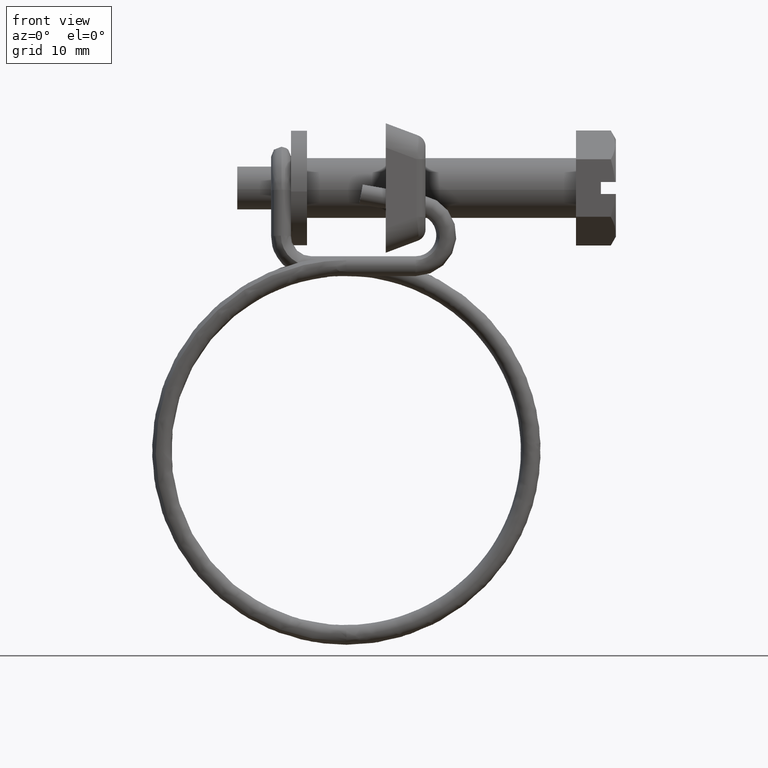
[diagram: clean part render]
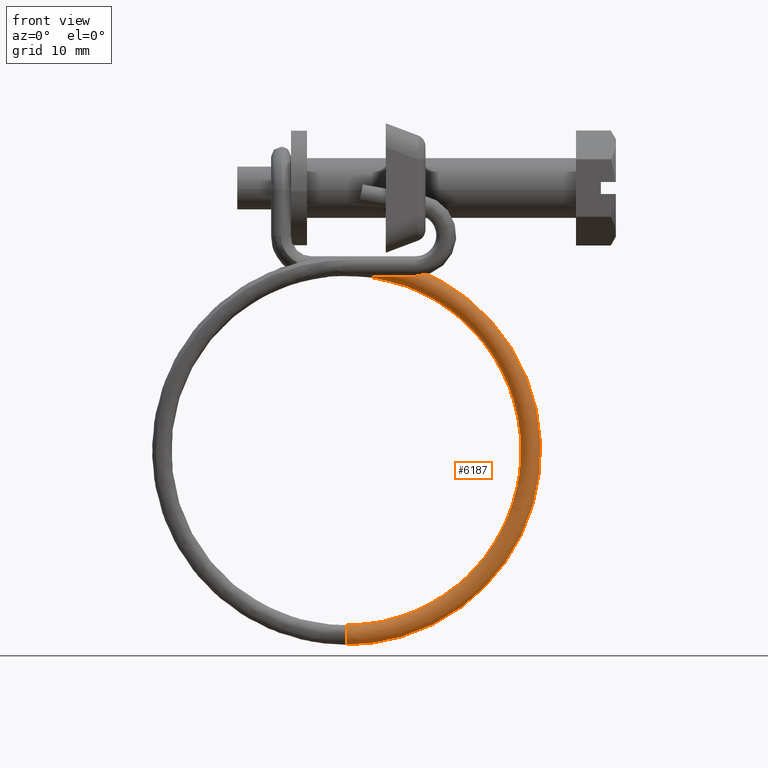
[diagram: same view with one face highlighted and labeled with its STEP entity id]
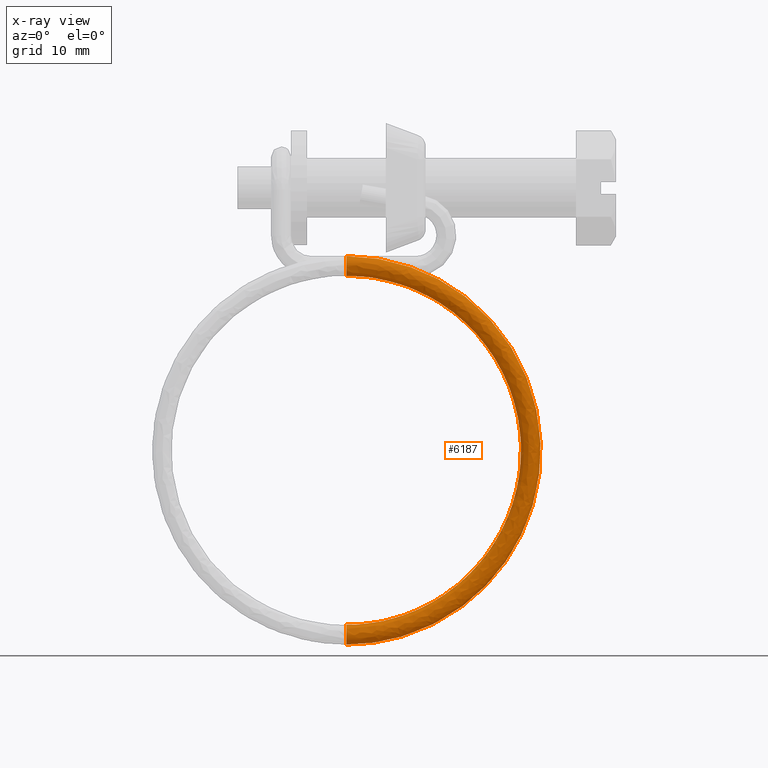
[diagram: x-ray of the same camera — body ghosted, the highlighted face saturated]
A machine part, front view. The second image highlights one B-rep face of the part: STEP entity #6187.
The next image is the same camera in x-ray: the body ghosted, the highlighted face saturated — about 0% of this face is hidden behind the body in this view.
In plain terms, the highlighted face is a freeform B-spline surface patch.
Its self-contained STEP definition (entity closure, byte-faithful):
#4745=CARTESIAN_POINT('',(-23.049997063512699,-4.979169497644462,-7.116017682653981));
#4746=VERTEX_POINT('',#4745);
#4747=CARTESIAN_POINT('',(-23.049997272682479,-5.071626583387065,-8.486079220278896));
#4748=VERTEX_POINT('',#4747);
#4749=CARTESIAN_POINT('',(-23.049997063512702,-4.979169497644463,-7.116017682653981));
#4750=CARTESIAN_POINT('',(-23.049997108836671,-5.300002000000000,-7.412889109673032));
#4751=CARTESIAN_POINT('',(-23.049997175571320,-5.300002000000000,-7.850001000000341));
#4752=CARTESIAN_POINT('',(-23.049997230386083,-5.300002000000001,-8.209037686578441));
#4753=CARTESIAN_POINT('',(-23.049997272682479,-5.071626583387065,-8.486079220278896));
#4761=(BOUNDED_CURVE()B_SPLINE_CURVE(2,(#4749,#4750,#4751,#4752,#4753),.UNSPECIFIED.,.F.,.U.)B_SPLINE_CURVE_WITH_KNOTS((3,2,3),(0.119149158085703,0.250000000000000,0.360504625859860),.UNSPECIFIED.)CURVE()GEOMETRIC_REPRESENTATION_ITEM()RATIONAL_B_SPLINE_CURVE((0.853874236145370,0.846698702909085,1.0,0.870535777752518,0.855522719038601))REPRESENTATION_ITEM(''));
#4762=EDGE_CURVE('',#4746,#4748,#4761,.T.);
#4837=CARTESIAN_POINT('',(-23.049997022899440,-4.300002000000000,-6.850001000000352));
#4838=VERTEX_POINT('',#4837);
#4839=CARTESIAN_POINT('',(-23.049997022899440,-4.300002000000000,-6.850001000000352));
#4840=CARTESIAN_POINT('',(-23.049997022899493,-4.691682086610713,-6.850001000000352));
#4841=CARTESIAN_POINT('',(-23.049997063512702,-4.979169497644463,-7.116017682653981));
#4849=(BOUNDED_CURVE()B_SPLINE_CURVE(2,(#4839,#4840,#4841),.UNSPECIFIED.,.F.,.U.)B_SPLINE_CURVE_WITH_KNOTS((3,3),(0.0,0.119149158085703),.UNSPECIFIED.)CURVE()GEOMETRIC_REPRESENTATION_ITEM()RATIONAL_B_SPLINE_CURVE((1.0,0.860408078277463,0.853874236145370))REPRESENTATION_ITEM(''));
#4850=EDGE_CURVE('',#4838,#4746,#4849,.T.);
#4852=CARTESIAN_POINT('',(-23.049997022887950,-4.287435959715079,-6.850079955801473));
#4853=VERTEX_POINT('',#4852);
#4854=CARTESIAN_POINT('',(-23.049997022887950,-4.287435959715079,-6.850079955801474));
#4855=CARTESIAN_POINT('',(-23.049997022899447,-4.293718731606495,-6.850001000000352));
#4856=CARTESIAN_POINT('',(-23.049997022899440,-4.300002000000000,-6.850001000000352));
#4864=(BOUNDED_CURVE()B_SPLINE_CURVE(2,(#4854,#4855,#4856),.UNSPECIFIED.,.F.,.U.)B_SPLINE_CURVE_WITH_KNOTS((3,3),(0.997784295780472,1.0),.UNSPECIFIED.)CURVE()GEOMETRIC_REPRESENTATION_ITEM()RATIONAL_B_SPLINE_CURVE((0.994854295318895,0.997404141036816,1.0))REPRESENTATION_ITEM(''));
#4865=EDGE_CURVE('',#4853,#4838,#4864,.T.);
#4867=CARTESIAN_POINT('',(-23.049997186218310,-3.302436326161036,-7.919734251596680));
#4868=VERTEX_POINT('',#4867);
#4884=CARTESIAN_POINT('',(-23.049997328242959,-4.300002000000000,-8.850001000000329));
#4885=VERTEX_POINT('',#4884);
#4886=CARTESIAN_POINT('',(-23.049997328242959,-4.300002000000000,-8.850001000000329));
#4887=CARTESIAN_POINT('',(-23.049997328242842,-3.367465152772754,-8.850001000000329));
#4888=CARTESIAN_POINT('',(-23.049997186218313,-3.302436326161036,-7.919734251596680));
#4896=(BOUNDED_CURVE()B_SPLINE_CURVE(2,(#4886,#4887,#4888),.UNSPECIFIED.,.F.,.U.)B_SPLINE_CURVE_WITH_KNOTS((3,3),(0.500000000000000,0.737833686527891),.UNSPECIFIED.)CURVE()GEOMETRIC_REPRESENTATION_ITEM()RATIONAL_B_SPLINE_CURVE((1.0,0.721360504042306,0.972879876371745))REPRESENTATION_ITEM(''));
#4897=EDGE_CURVE('',#4885,#4868,#4896,.T.);
#4899=CARTESIAN_POINT('',(-23.049997272682475,-5.071626583387065,-8.486079220278896));
#4900=CARTESIAN_POINT('',(-23.049997328243020,-4.771632618769954,-8.850001000000331));
#4901=CARTESIAN_POINT('',(-23.049997328242959,-4.300002000000000,-8.850001000000329));
#4909=(BOUNDED_CURVE()B_SPLINE_CURVE(2,(#4899,#4900,#4901),.UNSPECIFIED.,.F.,.U.)B_SPLINE_CURVE_WITH_KNOTS((3,3),(0.360504625859859,0.500000000000000),.UNSPECIFIED.)CURVE()GEOMETRIC_REPRESENTATION_ITEM()RATIONAL_B_SPLINE_CURVE((0.855522719038602,0.836571003434029,1.0))REPRESENTATION_ITEM(''));
#4910=EDGE_CURVE('',#4748,#4885,#4909,.T.);
#6051=CARTESIAN_POINT('',(-25.649571571349696,-3.300955262302834,-8.082587836305876));
#6052=CARTESIAN_POINT('',(-4.329393457883245,-3.300955262302832,-5.048587979663238));
#6053=CARTESIAN_POINT('',(-4.600002813107315,-3.300955262302834,-26.581862707323854));
#6054=CARTESIAN_POINT('',(-4.864206217500565,-3.300955262302832,-47.605394898486949));
#6055=CARTESIAN_POINT('',(-25.675465997560149,-3.300955262302834,-44.613710490224676));
#6056=CARTESIAN_POINT('',(-25.648085128229486,-3.301692785240208,-8.093033200042193));
#6057=CARTESIAN_POINT('',(-4.340097959004702,-3.301692785240206,-5.060768193966220));
#6058=CARTESIAN_POINT('',(-4.610552578956708,-3.301692785240208,-26.581730128077524));
#6059=CARTESIAN_POINT('',(-4.874604911020531,-3.301692785240206,-47.593240998061169));
#6060=CARTESIAN_POINT('',(-25.673964747926380,-3.301692785240208,-44.603267244260380));
#6061=CARTESIAN_POINT('',(-25.513863233169747,-3.368289162160303,-9.036222008418417));
#6062=CARTESIAN_POINT('',(-5.306686190097667,-3.368289162160302,-6.160609434942364));
#6063=CARTESIAN_POINT('',(-5.563168622909537,-3.368289162160303,-26.569758571651906));
#6064=CARTESIAN_POINT('',(-5.813579521896564,-3.368289162160302,-46.495775830824137));
#6065=CARTESIAN_POINT('',(-25.538405863727458,-3.368289162160303,-43.660269665114875));
#6066=CARTESIAN_POINT('',(-25.515535109632349,-4.312568039883352,-9.024473588625938));
#6067=CARTESIAN_POINT('',(-5.294646305607412,-4.312568039883353,-6.146909742484909));
#6068=CARTESIAN_POINT('',(-5.551302776871061,-4.312568039883352,-26.569907690120250));
#6069=CARTESIAN_POINT('',(-5.801883594416214,-4.312568039883352,-46.509445926755980));
#6070=CARTESIAN_POINT('',(-25.540094393811813,-4.312568039883352,-43.672015702943860));
#6071=CARTESIAN_POINT('',(-25.517305502360273,-5.312489084087168,-9.012032886558174));
#6072=CARTESIAN_POINT('',(-5.281896964119848,-5.312489084087168,-6.132402787907724));
#6073=CARTESIAN_POINT('',(-5.538737729149390,-5.312489084087169,-26.570065595478599));
#6074=CARTESIAN_POINT('',(-5.789498477799726,-5.312489084087168,-46.523921540815515));
#6075=CARTESIAN_POINT('',(-25.541882421485575,-5.312489084087168,-43.684453882689645));
#6076=CARTESIAN_POINT('',(-25.658181463410049,-5.299923044203816,-8.022085383788484));
#6077=CARTESIAN_POINT('',(-4.267390009542660,-5.299923044203815,-4.978036790052125));
#6078=CARTESIAN_POINT('',(-4.538895634507739,-5.299923044203815,-26.582630643200272));
#6079=CARTESIAN_POINT('',(-4.803974091859282,-5.299923044203816,-47.675793670801241));
#6080=CARTESIAN_POINT('',(-25.684161653065942,-5.299923044203815,-44.674200676017371));
#6081=CARTESIAN_POINT('',(-25.799057424459811,-5.287357004320464,-7.032137881018787));
#6082=CARTESIAN_POINT('',(-3.252883054965471,-5.287357004320463,-3.823670792196531));
#6083=CARTESIAN_POINT('',(-3.539053539866088,-5.287357004320464,-26.595195690921933));
#6084=CARTESIAN_POINT('',(-3.818449705918840,-5.287357004320462,-48.827665800786988));
#6085=CARTESIAN_POINT('',(-25.826440884646296,-5.287357004320463,-45.663947469345118));
#6086=CARTESIAN_POINT('',(-25.797268556806610,-4.277001288587568,-7.044708407976651));
#6087=CARTESIAN_POINT('',(-3.265765442148399,-4.277001288587566,-3.838329134032521));
#6088=CARTESIAN_POINT('',(-3.551749710086367,-4.277001288587568,-26.595036137742945));
#6089=CARTESIAN_POINT('',(-3.830964067363699,-4.277001288587568,-48.813039126522447));
#6090=CARTESIAN_POINT('',(-25.824634198017840,-4.277001288587565,-45.651379491030944));
#6091=CARTESIAN_POINT('',(-25.797250240910500,-4.266656437040588,-7.044837115354871));
#6092=CARTESIAN_POINT('',(-3.265897342607716,-4.266656437040590,-3.838479218174034));
#6093=CARTESIAN_POINT('',(-3.551879703903494,-4.266656437040591,-26.595034504106479));
#6094=CARTESIAN_POINT('',(-3.831092199673277,-4.266656437040588,-48.812889366619544));
#6095=CARTESIAN_POINT('',(-25.824615699676453,-4.266656437040590,-45.651250809747822));
#6103=(BOUNDED_SURFACE()B_SPLINE_SURFACE(2,2,((#6051,#6056,#6061,#6066,#6071,#6076,#6081,#6086,#6091),(#6052,#6057,#6062,#6067,#6072,#6077,#6082,#6087,#6092),(#6053,#6058,#6063,#6068,#6073,#6078,#6083,#6088,#6093),(#6054,#6059,#6064,#6069,#6074,#6079,#6084,#6089,#6094),(#6055,#6060,#6065,#6070,#6075,#6080,#6085,#6090,#6095)),.UNSPECIFIED.,.F.,.F.,.U.)B_SPLINE_SURFACE_WITH_KNOTS((3,2,3),(3,1,2,2,1,3),(0.0,35.883469847438583,71.210752797382455),(0.0,0.024521772633282,1.615101852145983,3.271956101638379,4.928810351130776,4.953368390709729),.UNSPECIFIED.)GEOMETRIC_REPRESENTATION_ITEM()RATIONAL_B_SPLINE_SURFACE(((0.981495515099013,0.977523559973827,0.715914736857093,0.995954810760949,0.704246400444432,0.995954810760949,0.704246400444432,1.000278538504811,1.004602266248674),(0.639902800924835,0.637313216794644,0.466752866712799,0.649329786225465,0.459145495066438,0.649329786225465,0.459145495066438,0.652148714535550,0.654967642845635),(0.985481976184352,0.981493888489740,0.718822509939086,1.0,0.707106781186548,1.0,0.707106781186548,1.004341289079731,1.008682578159462),(0.645259211833355,0.642647951166253,0.470659897816945,0.654765107254125,0.462988847423729,0.654765107254125,0.462988847423729,0.657607631864037,0.660450156473948),(0.971071361004892,0.967141590761493,0.708311232388203,0.985377089051129,0.696766821693914,0.985377089051129,0.696766821693914,0.989654895847244,0.993932702643359)))REPRESENTATION_ITEM('')SURFACE());
#6104=CARTESIAN_POINT('',(-23.050000000001351,-4.300002000000002,-43.850000999999899));
#6105=VERTEX_POINT('',#6104);
#6106=CARTESIAN_POINT('',(-23.049999999929931,-3.302485887033129,-44.780271342075302));
#6107=VERTEX_POINT('',#6106);
#6108=CARTESIAN_POINT('',(-23.050000000001351,-4.300002000000002,-43.850000999999899));
#6109=CARTESIAN_POINT('',(-23.049999999991311,-4.038195655369269,-43.850000495565972));
#6110=CARTESIAN_POINT('',(-23.049999999977501,-3.777998799462700,-43.957772896960158));
#6111=CARTESIAN_POINT('',(-23.049999999951311,-3.424196145418642,-44.311556064547418));
#6112=CARTESIAN_POINT('',(-23.049999999939072,-3.319730377699208,-44.542534340318241));
#6113=CARTESIAN_POINT('',(-23.049999999929931,-3.302485887033129,-44.780271342075302));
#6114=B_SPLINE_CURVE_WITH_KNOTS('',3,(#6108,#6109,#6110,#6111,#6112,#6113),.UNSPECIFIED.,.F.,.U.,(4,2,4),(0.500000000000000,0.625000000000000,0.738888458192327),.UNSPECIFIED.);
#6115=EDGE_CURVE('',#6105,#6107,#6114,.T.);
#6116=ORIENTED_EDGE('',*,*,#6115,.F.);
#6117=CARTESIAN_POINT('',(-23.050000000001418,-5.028950006580754,-45.534537720001701));
#6118=VERTEX_POINT('',#6117);
#6119=CARTESIAN_POINT('',(-23.050000000001418,-5.028950006580754,-45.534537720001701));
#6120=CARTESIAN_POINT('',(-23.050000000001461,-5.200678332641099,-45.351170051731422));
#6121=CARTESIAN_POINT('',(-23.050000000001440,-5.300001999999999,-45.101328389166561));
#6122=CARTESIAN_POINT('',(-23.050000000001411,-5.300002000000001,-44.588201612200749));
#6123=CARTESIAN_POINT('',(-23.050000000001390,-5.192228903609815,-44.328014341236617));
#6124=CARTESIAN_POINT('',(-23.050000000001361,-4.821988658763284,-43.957774096390096));
#6125=CARTESIAN_POINT('',(-23.050000000001351,-4.561801387799152,-43.850000999999892));
#6126=CARTESIAN_POINT('',(-23.050000000001351,-4.300002000000002,-43.850000999999899));
#6127=B_SPLINE_CURVE_WITH_KNOTS('',3,(#6119,#6120,#6121,#6122,#6123,#6124,#6125,#6126),.UNSPECIFIED.,.F.,.U.,(4,2,2,4),(0.130000011039239,0.250000000000000,0.375000000000000,0.500000000000000),.UNSPECIFIED.);
#6128=EDGE_CURVE('',#6118,#6105,#6127,.T.);
#6129=ORIENTED_EDGE('',*,*,#6128,.F.);
#6130=CARTESIAN_POINT('',(-23.050000000001429,-4.300002000000003,-45.850000999999907));
#6131=VERTEX_POINT('',#6130);
#6132=CARTESIAN_POINT('',(-23.050000000001511,-4.300001999999999,-45.850000999999907));
#6133=CARTESIAN_POINT('',(-23.050000000001511,-4.561801387799146,-45.850000999999907));
#6134=CARTESIAN_POINT('',(-23.050000000001500,-4.821988658763279,-45.742227903609688));
#6135=CARTESIAN_POINT('',(-23.050000000001489,-5.014513602432157,-45.549702959940831));
#6136=CARTESIAN_POINT('',(-23.050000000001479,-5.021794667889650,-45.542178030727200));
#6137=CARTESIAN_POINT('',(-23.050000000001418,-5.028950006580754,-45.534537720001701));
#6138=B_SPLINE_CURVE_WITH_KNOTS('',3,(#6132,#6133,#6134,#6135,#6136,#6137),.UNSPECIFIED.,.F.,.U.,(4,2,4),(0.0,0.125000000000000,0.130000011039239),.UNSPECIFIED.);
#6139=EDGE_CURVE('',#6131,#6118,#6138,.T.);
#6140=ORIENTED_EDGE('',*,*,#6139,.F.);
#6141=CARTESIAN_POINT('',(-23.050017775911780,-4.287434535228346,-45.849920172849480));
#6142=VERTEX_POINT('',#6141);
#6143=CARTESIAN_POINT('',(-23.050017775911780,-4.287434535228346,-45.849920172849480));
#6144=CARTESIAN_POINT('',(-23.050011851220109,-4.291623076571878,-45.849974633533762));
#6145=CARTESIAN_POINT('',(-23.050005925774329,-4.295812331849052,-45.850001617470006));
#6146=CARTESIAN_POINT('',(-23.050000000001429,-4.300002000000003,-45.850000999999907));
#6147=B_SPLINE_CURVE_WITH_KNOTS('',3,(#6143,#6144,#6145,#6146),.UNSPECIFIED.,.F.,.U.,(4,4),(0.997999584688389,1.0),.UNSPECIFIED.);
#6148=EDGE_CURVE('',#6142,#6131,#6147,.T.);
#6149=ORIENTED_EDGE('',*,*,#6148,.F.);
#6150=CARTESIAN_POINT('',(-23.049997022887950,-4.287435959715079,-6.850079955801473));
#6151=CARTESIAN_POINT('',(-3.303483106176727,-4.287435959715353,-6.850082970585804));
#6152=CARTESIAN_POINT('',(-3.551618587598524,-4.287435238522013,-26.595036838135869));
#6153=CARTESIAN_POINT('',(-3.793595557197205,-4.287434535228079,-45.849937726791765));
#6154=CARTESIAN_POINT('',(-23.050017775911776,-4.287434535228346,-45.849920172849480));
#6162=(BOUNDED_CURVE()B_SPLINE_CURVE(2,(#6150,#6151,#6152,#6153,#6154),.UNSPECIFIED.,.F.,.U.)B_SPLINE_CURVE_WITH_KNOTS((3,2,3),(-3.809258955672902,-2.0,-0.221561916554182),.UNSPECIFIED.)CURVE()GEOMETRIC_REPRESENTATION_ITEM()RATIONAL_B_SPLINE_CURVE((0.939140841391740,0.680933074352398,1.0,0.686368405163634,0.930511182756110))REPRESENTATION_ITEM(''));
#6163=EDGE_CURVE('',#4853,#6142,#6162,.T.);
#6164=ORIENTED_EDGE('',*,*,#6163,.F.);
#6165=ORIENTED_EDGE('',*,*,#4865,.T.);
#6166=ORIENTED_EDGE('',*,*,#4850,.T.);
#6167=ORIENTED_EDGE('',*,*,#4762,.T.);
#6168=ORIENTED_EDGE('',*,*,#4910,.T.);
#6169=ORIENTED_EDGE('',*,*,#4897,.T.);
#6170=CARTESIAN_POINT('',(-23.049997186218317,-3.302436326161035,-7.919734251596680));
#6171=CARTESIAN_POINT('',(-4.386664241823966,-3.302436326162952,-7.919737100960187));
#6172=CARTESIAN_POINT('',(-4.621188427959994,-3.302461417987139,-26.581598286436130));
#6173=CARTESIAN_POINT('',(-4.849891714555803,-3.302485887031261,-44.780271342005953));
#6174=CARTESIAN_POINT('',(-23.049999999929927,-3.302485887033130,-44.780271342075295));
#6182=(BOUNDED_CURVE()B_SPLINE_CURVE(2,(#6170,#6171,#6172,#6173,#6174),.UNSPECIFIED.,.F.,.U.)B_SPLINE_CURVE_WITH_KNOTS((3,2,3),(-3.809258955675990,-2.0,-0.221563029390101),.UNSPECIFIED.)CURVE()GEOMETRIC_REPRESENTATION_ITEM()RATIONAL_B_SPLINE_CURVE((0.918015620224904,0.665616030132197,0.977505800795127,0.670929289366582,0.909579780183169))REPRESENTATION_ITEM(''));
#6183=EDGE_CURVE('',#4868,#6107,#6182,.T.);
#6184=ORIENTED_EDGE('',*,*,#6183,.T.);
#6185=EDGE_LOOP('',(#6116,#6129,#6140,#6149,#6164,#6165,#6166,#6167,#6168,#6169,#6184));
#6186=FACE_OUTER_BOUND('',#6185,.T.);
#6187=ADVANCED_FACE('',(#6186),#6103,.T.);